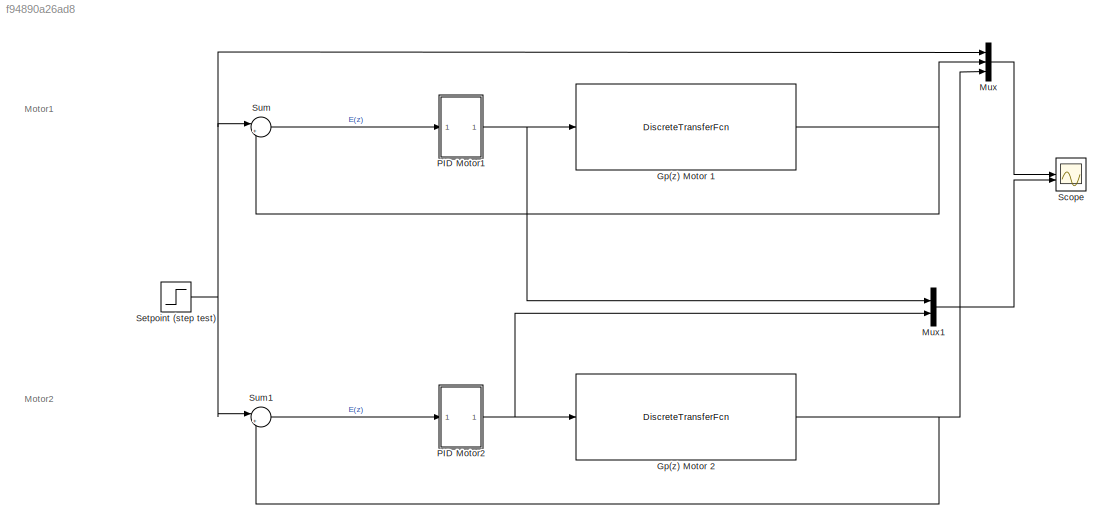
MODEL slx_f94890a26ad8
KIND model
CONFIG AbsTol = auto
CONFIG EnableMultiTasking = off
CONFIG FixedStep = auto
CONFIG MaxStep = auto
CONFIG MinStep = auto
CONFIG RelTol = 1e-3
CONFIG SampleTimeConstraint = Unconstrained
CONFIG SolverName = VariableStepAuto
CONFIG StartTime = 0.0
CONFIG StopTime = 30
BLOCK [DiscreteTransferFcn] Gp(z) Motor 1
  Denominator = [1 -1.073 0.2992 0]
  InputPortMap = u0
  Numerator = [1.097 0.008093 -0.1973]
BLOCK [DiscreteTransferFcn] Gp(z) Motor 2
  Denominator = [1 -1.171 0.348]
  InputPortMap = u0
  Numerator = [1.033 0.004355 -0.2917]
BLOCK [Mux] Mux
  DisplayOption = bar
  Inputs = 3
BLOCK [Mux] Mux1
  DisplayOption = bar
  Inputs = 2
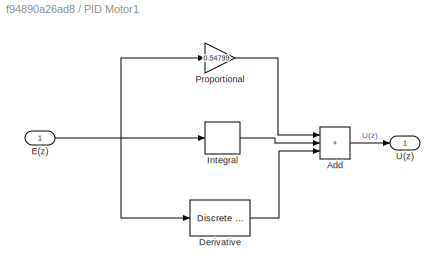
BLOCK [SubSystem] PID Motor1
BLOCK [Sum] PID Motor1/Add
  IconShape = rectangular
  Inputs = +++
BLOCK [Reference] PID Motor1/Derivative  REF=simulink/Discrete/Discrete Derivative
  SourceBlock = simulink/Discrete/Discrete Derivative
  SourceType = Discrete Derivative
BLOCK [Inport] PID Motor1/E(z)
BLOCK [DiscreteIntegrator] PID Motor1/Integral
  ICPrevOutput = DiscIntNeverNeededParam
  ICPrevScaledInput = DiscIntNeverNeededParam
  InitialConditionSetting = Auto
  SampleTime = -1
  gainval = 0.22643
BLOCK [Gain] PID Motor1/Proportional
  Gain = 0.54799
BLOCK [Outport] PID Motor1/U(z)
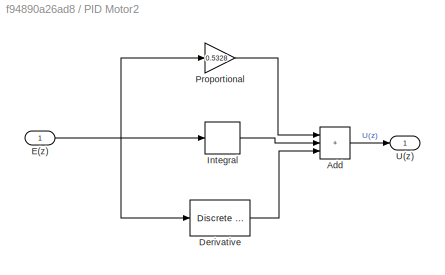
BLOCK [SubSystem] PID Motor2
BLOCK [Sum] PID Motor2/Add
  IconShape = rectangular
  Inputs = +++
BLOCK [Reference] PID Motor2/Derivative  REF=simulink/Discrete/Discrete Derivative
  SourceBlock = simulink/Discrete/Discrete Derivative
  SourceType = Discrete Derivative
BLOCK [Inport] PID Motor2/E(z)
BLOCK [DiscreteIntegrator] PID Motor2/Integral
  ICPrevOutput = DiscIntNeverNeededParam
  ICPrevScaledInput = DiscIntNeverNeededParam
  InitialConditionSetting = Auto
  SampleTime = -1
  gainval = 0.2022
BLOCK [Gain] PID Motor2/Proportional
  Gain = 0.5328
BLOCK [Outport] PID Motor2/U(z)
BLOCK [Scope] Scope
  Floating = off
  NumInputPorts = 2
  ScopeSpecificationString = Simulink.scopes.TimeScopeBlockCfg('CurrentConfiguration', extmgr.ConfigurationSet(extmgr.Configuration('Core','General UI',true),extmgr.Configuration('Core','Source UI',true),extmgr.Configuration('Sources','WiredSimulink',true,'DataLoggingVariableName','ScopeData1'),extmgr.Configuration('Visuals','Time Domain',true,'SerializedDisplays',{struct('MinYLimReal','-0.67081','MaxYLimReal','6.0373','YLabe...<+2151ch>
BLOCK [Step] Setpoint (step test)
  After = 5
  SampleTime = 1
BLOCK [Sum] Sum
  Inputs = |+-
BLOCK [Sum] Sum1
  Inputs = |+-
ANNOTATION (root): Motor1
ANNOTATION (root): Motor2
NET Gp(z) Motor 1:1 -> Mux:2, Sum:2
NET Gp(z) Motor 2:1 -> Mux:3, Sum1:2
LINE Mux1:1 -> Scope:2
LINE Mux:1 -> Scope:1
LINE PID Motor1/Add:1 -> PID Motor1/U(z):1
LINE PID Motor1/Derivative:1 -> PID Motor1/Add:3
NET PID Motor1/E(z):1 -> PID Motor1/Derivative:1, PID Motor1/Integral:1, PID Motor1/Proportional:1
LINE PID Motor1/Integral:1 -> PID Motor1/Add:2
LINE PID Motor1/Proportional:1 -> PID Motor1/Add:1
NET PID Motor1:1 -> Gp(z) Motor 1:1, Mux1:1
LINE PID Motor2/Add:1 -> PID Motor2/U(z):1
LINE PID Motor2/Derivative:1 -> PID Motor2/Add:3
NET PID Motor2/E(z):1 -> PID Motor2/Derivative:1, PID Motor2/Integral:1, PID Motor2/Proportional:1
LINE PID Motor2/Integral:1 -> PID Motor2/Add:2
LINE PID Motor2/Proportional:1 -> PID Motor2/Add:1
NET PID Motor2:1 -> Gp(z) Motor 2:1, Mux1:2
NET Setpoint (step test):1 -> Mux:1, Sum1:1, Sum:1
LINE Sum1:1 -> PID Motor2:1
LINE Sum:1 -> PID Motor1:1
note: NET lines group one-source signal fan-out (src -> all destinations, sorted); 1:1 wires keep LINE
